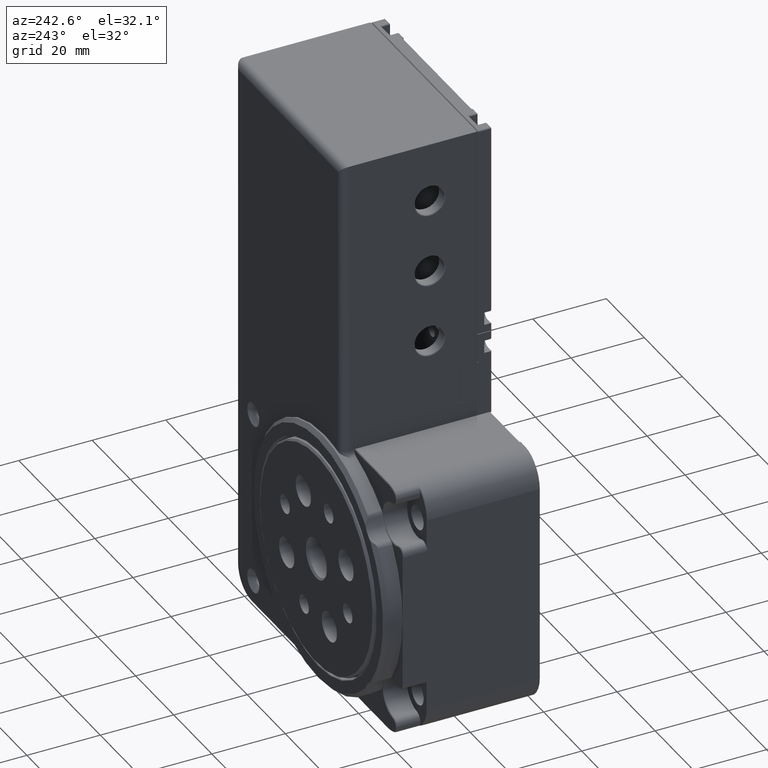
[diagram: clean part render]
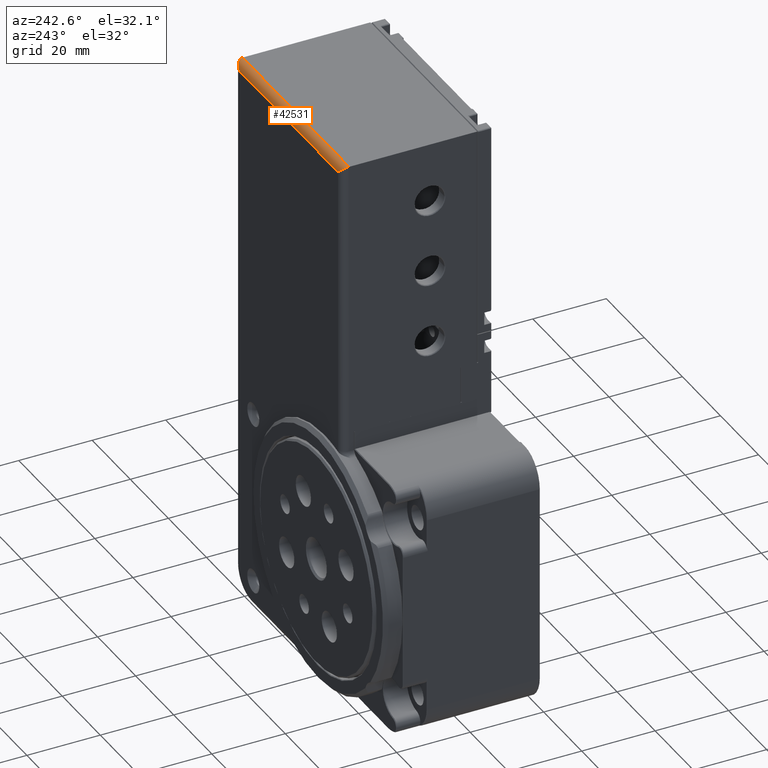
[diagram: same view with one face highlighted and labeled with its STEP entity id]
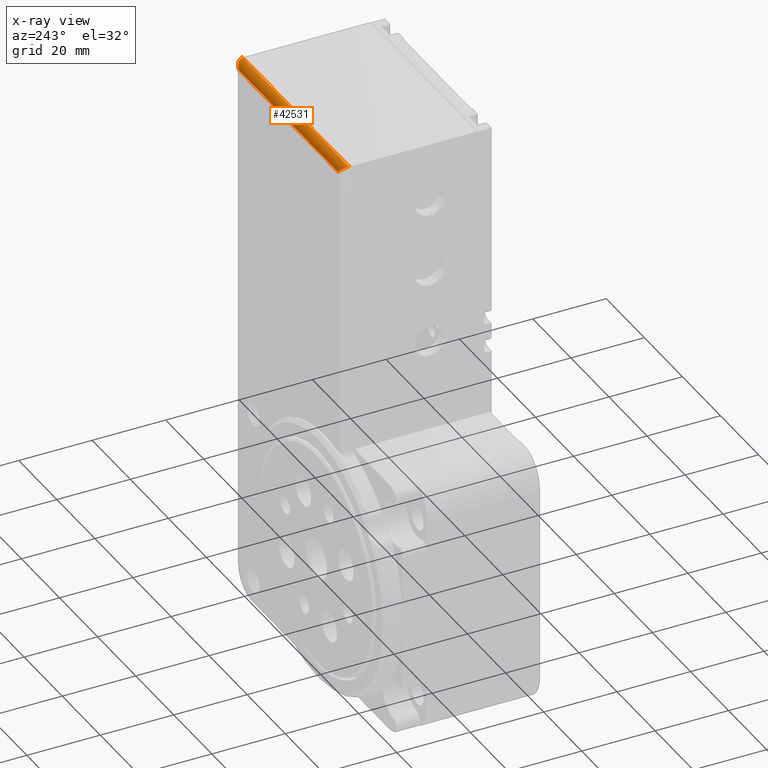
[diagram: x-ray of the same camera — body ghosted, the highlighted face saturated]
A machine part, auxiliary view. The second image highlights one B-rep face of the part: STEP entity #42531.
The next image is the same camera in x-ray: the body ghosted, the highlighted face saturated — about 0% of this face is hidden behind the body in this view.
In plain terms, the highlighted cylindrical surface (edge-blend (fillet) strip) has radius 2 mm, axis along (-1, 0, -0).
Its self-contained STEP definition (entity closure, byte-faithful):
#318 = CYLINDRICAL_SURFACE ( 'NONE', #18004, 1.999999999999998224 ) ;
#371 = CARTESIAN_POINT ( 'NONE',  ( 40.39068927312799673, 20.33187534622829773, 193.0000000000000000 ) ) ;
#660 = CARTESIAN_POINT ( 'NONE',  ( 40.39068927312802515, 21.50344822148209900, 193.0000000000000853 ) ) ;
#2626 = CARTESIAN_POINT ( 'NONE',  ( -14.78088360212578678, 22.33187534622827286, 192.1715728752540429 ) ) ;
#2873 = EDGE_CURVE ( 'NONE', #48640, #23369, #5539, .T. ) ;
#5333 = DIRECTION ( 'NONE',  ( -1.000000000000000000, 0.000000000000000000, -5.551115123125779621E-17 ) ) ;
#5539 =( BOUNDED_CURVE ( )  B_SPLINE_CURVE ( 3, ( #38080, #2626, #55451, #51388 ),
 .UNSPECIFIED., .F., .T. ) 
 B_SPLINE_CURVE_WITH_KNOTS ( ( 4, 4 ),
 ( 1.570796326794895004, 3.141592653589795336 ),
 .UNSPECIFIED. ) 
 CURVE ( )  GEOMETRIC_REPRESENTATION_ITEM ( )  RATIONAL_B_SPLINE_CURVE ( ( 1.000000000000000000, 0.8047378541243649375, 0.8047378541243649375, 1.000000000000000000 ) ) 
 REPRESENTATION_ITEM ( '' )  );
#5871 = CARTESIAN_POINT ( 'NONE',  ( 39.56226214838184774, 22.33187534622827286, 192.1715728752540429 ) ) ;
#6161 = CARTESIAN_POINT ( 'NONE',  ( 38.39068927312805357, 22.33187534622830128, 191.0000000000000000 ) ) ;
#7522 = EDGE_CURVE ( 'NONE', #22924, #23369, #36477, .T. ) ;
#8432 = EDGE_CURVE ( 'NONE', #48640, #18639, #49042, .T. ) ;
#13302 = CARTESIAN_POINT ( 'NONE',  ( -6.109310726871989949, 20.33187534622829773, 191.0000000000000000 ) ) ;
#13538 = CARTESIAN_POINT ( 'NONE',  ( -1.359310726871987951, 22.33187534622830128, 191.0000000000000000 ) ) ;
#13869 = DIRECTION ( 'NONE',  ( -1.000000000000000000, 0.000000000000000000, -5.551115123125779621E-17 ) ) ;
#18004 = AXIS2_PLACEMENT_3D ( 'NONE', #13302, #13869, #48250 ) ;
#18639 = VERTEX_POINT ( 'NONE', #31668 ) ;
#22924 = VERTEX_POINT ( 'NONE', #49746 ) ;
#23369 = VERTEX_POINT ( 'NONE', #53168 ) ;
#23544 = VECTOR ( 'NONE', #27060, 1000.000000000000000 ) ;
#27060 = DIRECTION ( 'NONE',  ( 1.000000000000000000, 0.000000000000000000, 5.551115123125779621E-17 ) ) ;
#27119 = FACE_OUTER_BOUND ( 'NONE', #51498, .T. ) ;
#31668 = CARTESIAN_POINT ( 'NONE',  ( 38.39068927312805357, 22.33187534622830128, 191.0000000000000000 ) ) ;
#34748 = CARTESIAN_POINT ( 'NONE',  ( -13.60931072687198018, 22.33187534622830128, 191.0000000000000000 ) ) ;
#36185 = CARTESIAN_POINT ( 'NONE',  ( -6.109310726871989949, 20.33187534622829773, 193.0000000000000000 ) ) ;
#36477 = LINE ( 'NONE', #36185, #41664 ) ;
#38080 = CARTESIAN_POINT ( 'NONE',  ( -13.60931072687198018, 22.33187534622830128, 191.0000000000000000 ) ) ;
#41524 = ORIENTED_EDGE ( 'NONE', *, *, #7522, .F. ) ;
#41664 = VECTOR ( 'NONE', #5333, 1000.000000000000000 ) ;
#42426 =( BOUNDED_CURVE ( )  B_SPLINE_CURVE ( 3, ( #6161, #5871, #660, #371 ),
 .UNSPECIFIED., .F., .T. ) 
 B_SPLINE_CURVE_WITH_KNOTS ( ( 4, 4 ),
 ( 4.712388980384689674, 6.283185307179590673 ),
 .UNSPECIFIED. ) 
 CURVE ( )  GEOMETRIC_REPRESENTATION_ITEM ( )  RATIONAL_B_SPLINE_CURVE ( ( 1.000000000000000000, 0.8047378541243649375, 0.8047378541243649375, 1.000000000000000000 ) ) 
 REPRESENTATION_ITEM ( '' )  );
#42531 = ADVANCED_FACE ( 'NONE', ( #27119 ), #318, .T. ) ;
#44008 = ORIENTED_EDGE ( 'NONE', *, *, #8432, .F. ) ;
#44179 = EDGE_CURVE ( 'NONE', #18639, #22924, #42426, .T. ) ;
#48250 = DIRECTION ( 'NONE',  ( 0.000000000000000000, 1.000000000000000000, 0.000000000000000000 ) ) ;
#48278 = ORIENTED_EDGE ( 'NONE', *, *, #2873, .T. ) ;
#48640 = VERTEX_POINT ( 'NONE', #34748 ) ;
#49042 = LINE ( 'NONE', #13538, #23544 ) ;
#49746 = CARTESIAN_POINT ( 'NONE',  ( 40.39068927312799673, 20.33187534622829773, 193.0000000000000000 ) ) ;
#51388 = CARTESIAN_POINT ( 'NONE',  ( -15.60931072687199972, 20.33187534622829773, 193.0000000000000000 ) ) ;
#51498 = EDGE_LOOP ( 'NONE', ( #48278, #41524, #51623, #44008 ) ) ;
#51623 = ORIENTED_EDGE ( 'NONE', *, *, #44179, .F. ) ;
#53168 = CARTESIAN_POINT ( 'NONE',  ( -15.60931072687199972, 20.33187534622829773, 193.0000000000000000 ) ) ;
#55451 = CARTESIAN_POINT ( 'NONE',  ( -15.60931072687199617, 21.50344822148209900, 193.0000000000000853 ) ) ;